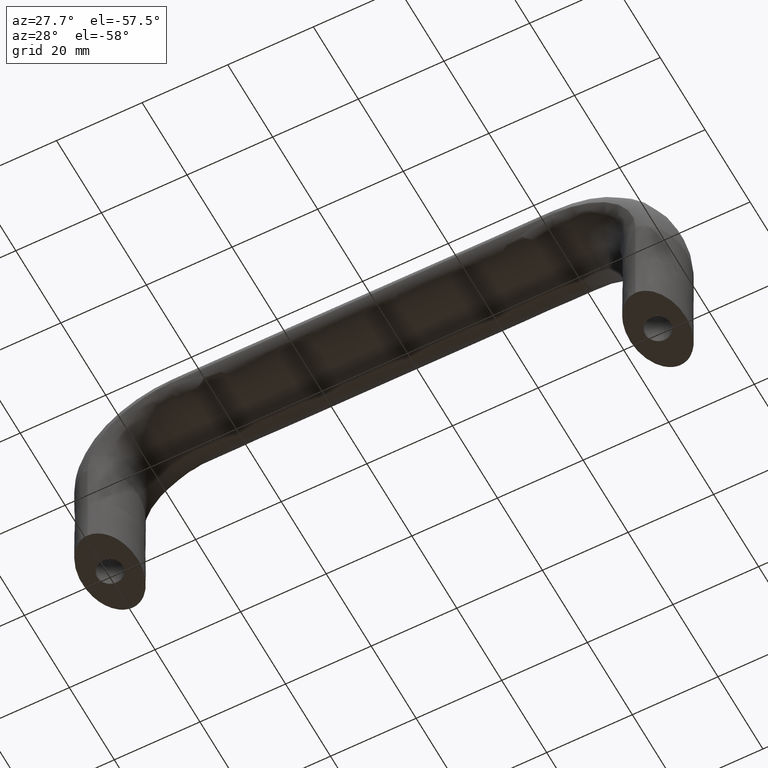
[diagram: clean part render]
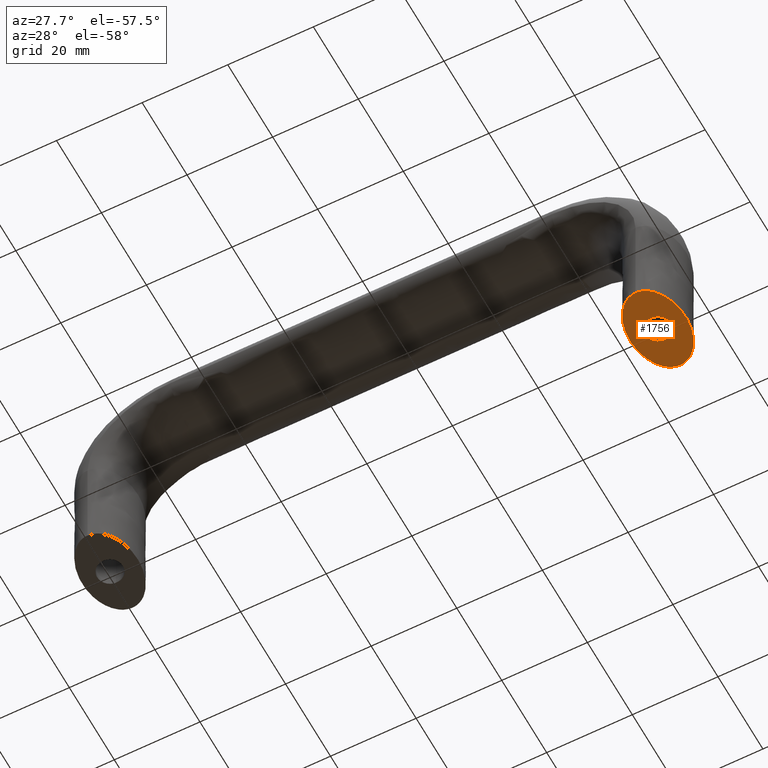
[diagram: same view with one face highlighted and labeled with its STEP entity id]
A machine part, auxiliary view. The second image highlights one B-rep face of the part: STEP entity #1756.
In plain terms, the highlighted face is a freeform B-spline surface patch.
Its self-contained STEP definition (entity closure, byte-faithful):
#271=CARTESIAN_POINT('',(128.354109704123200,-2.979028579072824,2.839428E-017));
#272=VERTEX_POINT('',#271);
#278=CARTESIAN_POINT('',(125.000007000000000,0.0,0.0));
#279=VERTEX_POINT('',#278);
#280=CARTESIAN_POINT('',(128.354109704123200,-2.979028579072824,2.839428E-017));
#281=CARTESIAN_POINT('',(128.177679359110270,-3.000000000000000,0.0));
#282=CARTESIAN_POINT('',(128.000007000000010,-3.0,0.0));
#283=CARTESIAN_POINT('',(125.000006999999980,-3.0,0.0));
#284=CARTESIAN_POINT('',(125.000007000000000,0.0,0.0));
#292=(BOUNDED_CURVE()B_SPLINE_CURVE(2,(#280,#281,#282,#283,#284),.UNSPECIFIED.,.F.,.U.)B_SPLINE_CURVE_WITH_KNOTS((3,2,3),(0.229562473498295,0.250000000000000,0.500000000000000),.UNSPECIFIED.)CURVE()GEOMETRIC_REPRESENTATION_ITEM()RATIONAL_B_SPLINE_CURVE((0.956026754153881,0.976055948313322,1.0,0.707106781186548,1.0))REPRESENTATION_ITEM(''));
#293=EDGE_CURVE('',#272,#279,#292,.T.);
#295=CARTESIAN_POINT('',(127.816861380719000,2.994404395224228,2.775558E-017));
#296=VERTEX_POINT('',#295);
#297=CARTESIAN_POINT('',(125.000007000000000,0.0,0.0));
#298=CARTESIAN_POINT('',(125.000007000000000,2.822118199439670,0.0));
#299=CARTESIAN_POINT('',(127.816861380718990,2.994404395224227,2.775558E-017));
#307=(BOUNDED_CURVE()B_SPLINE_CURVE(2,(#297,#298,#299),.UNSPECIFIED.,.F.,.U.)B_SPLINE_CURVE_WITH_KNOTS((3,3),(0.500000000000000,0.739332962164012),.UNSPECIFIED.)CURVE()GEOMETRIC_REPRESENTATION_ITEM()RATIONAL_B_SPLINE_CURVE((1.0,0.719603993374498,0.976072041506126))REPRESENTATION_ITEM(''));
#308=EDGE_CURVE('',#279,#296,#307,.T.);
#382=CARTESIAN_POINT('',(131.000007000000010,0.0,0.0));
#383=VERTEX_POINT('',#382);
#384=CARTESIAN_POINT('',(127.816861380719020,2.994404395224228,2.775558E-017));
#385=CARTESIAN_POINT('',(127.908348709425950,3.0,0.0));
#386=CARTESIAN_POINT('',(128.000007000000010,3.0,0.0));
#387=CARTESIAN_POINT('',(131.000007000000010,3.0,0.0));
#388=CARTESIAN_POINT('',(131.000007000000010,0.0,0.0));
#396=(BOUNDED_CURVE()B_SPLINE_CURVE(2,(#384,#385,#386,#387,#388),.UNSPECIFIED.,.F.,.U.)B_SPLINE_CURVE_WITH_KNOTS((3,2,3),(0.739332962164012,0.750000000000000,1.0),.UNSPECIFIED.)CURVE()GEOMETRIC_REPRESENTATION_ITEM()RATIONAL_B_SPLINE_CURVE((0.976072041506127,0.987502787812050,1.0,0.707106781186548,1.0))REPRESENTATION_ITEM(''));
#397=EDGE_CURVE('',#296,#383,#396,.T.);
#399=CARTESIAN_POINT('',(131.000007000000010,0.0,0.0));
#400=CARTESIAN_POINT('',(131.000007000000010,-2.664523577578653,0.0));
#401=CARTESIAN_POINT('',(128.354109704123180,-2.979028579072824,2.839428E-017));
#409=(BOUNDED_CURVE()B_SPLINE_CURVE(2,(#399,#400,#401),.UNSPECIFIED.,.F.,.U.)B_SPLINE_CURVE_WITH_KNOTS((3,3),(0.0,0.229562473498295),.UNSPECIFIED.)CURVE()GEOMETRIC_REPRESENTATION_ITEM()RATIONAL_B_SPLINE_CURVE((1.0,0.731050832873226,0.956026754153881))REPRESENTATION_ITEM(''));
#410=EDGE_CURVE('',#383,#272,#409,.T.);
#474=CARTESIAN_POINT('',(128.000006999999810,-10.0,2.244912E-030));
#475=VERTEX_POINT('',#474);
#483=CARTESIAN_POINT('',(130.767738322028010,9.043088328509544,-2.464482E-016));
#484=VERTEX_POINT('',#483);
#485=CARTESIAN_POINT('',(130.767738322028010,9.043088328509544,-2.464482E-016));
#486=CARTESIAN_POINT('',(131.788920821174910,8.305512378245888,-4.355888E-016));
#487=CARTESIAN_POINT('',(132.593839128236510,7.067798397807001,-5.929763E-016));
#488=CARTESIAN_POINT('',(133.507972283764300,5.662145952517433,-7.717187E-016));
#489=CARTESIAN_POINT('',(134.003266680679700,3.824125052806048,-8.821813E-016));
#490=CARTESIAN_POINT('',(134.498187716438590,1.987489683827639,-9.925607E-016));
#491=CARTESIAN_POINT('',(134.498549664107000,-0.002017246560270,-1.017792E-015));
#492=CARTESIAN_POINT('',(134.498911338933200,-1.990024453444192,-1.043004E-015));
#493=CARTESIAN_POINT('',(134.004285734043010,-3.828133019279761,-9.791618E-016));
#494=CARTESIAN_POINT('',(133.510032986189800,-5.664855988197224,-9.153682E-016));
#495=CARTESIAN_POINT('',(132.595722093326090,-7.071730822781738,-7.721729E-016));
#496=CARTESIAN_POINT('',(131.682100423296900,-8.477545131598838,-6.290855E-016));
#497=CARTESIAN_POINT('',(130.487299787594510,-9.239002294770296,-4.283370E-016));
#498=CARTESIAN_POINT('',(129.293477871442890,-9.999835711192290,-2.277528E-016));
#499=CARTESIAN_POINT('',(128.000006999999810,-10.0,2.244912E-030));
#500=B_SPLINE_CURVE_WITH_KNOTS('',2,(#485,#486,#487,#488,#489,#490,#491,#492,#493,#494,#495,#496,#497,#498,#499),.UNSPECIFIED.,.F.,.U.,(3,2,2,2,2,2,2,3),(0.140017178929429,0.250000000000000,0.375000000000000,0.500000000000000,0.625000000000000,0.750000000000000,0.875000000000000,1.0),.UNSPECIFIED.);
#501=EDGE_CURVE('',#484,#475,#500,.T.);
#572=CARTESIAN_POINT('',(128.000006999999810,10.0,8.618537E-030));
#573=VERTEX_POINT('',#572);
#574=CARTESIAN_POINT('',(128.000006999999810,10.0,8.618537E-030));
#575=CARTESIAN_POINT('',(129.291915429159390,9.998305116528963,-1.271980E-016));
#576=CARTESIAN_POINT('',(130.485151365502300,9.235614506326396,-2.238775E-016));
#577=CARTESIAN_POINT('',(130.628461118032790,9.144014011171633,-2.354889E-016));
#578=CARTESIAN_POINT('',(130.767738322028010,9.043088328509544,-2.464482E-016));
#579=B_SPLINE_CURVE_WITH_KNOTS('',2,(#574,#575,#576,#577,#578),.UNSPECIFIED.,.F.,.U.,(3,2,3),(0.0,0.125000000000000,0.140017178929429),.UNSPECIFIED.);
#580=EDGE_CURVE('',#573,#484,#579,.T.);
#582=CARTESIAN_POINT('',(128.000006999999810,-9.999999999999991,1.614772E-029));
#583=CARTESIAN_POINT('',(126.707017830758600,-9.999801078588824,2.300491E-016));
#584=CARTESIAN_POINT('',(125.512564689626700,-9.238795325112877,4.425666E-016));
#585=CARTESIAN_POINT('',(124.318466070474100,-8.478015443424365,6.550211E-016));
#586=CARTESIAN_POINT('',(123.403812922287200,-7.071067811865467,8.177565E-016));
#587=CARTESIAN_POINT('',(122.489849254913100,-5.665180760919563,9.803692E-016));
#588=CARTESIAN_POINT('',(121.994790038676400,-3.826834323650910,1.068450E-015));
#589=CARTESIAN_POINT('',(121.500104006350000,-1.989873662647719,1.156465E-015));
#590=CARTESIAN_POINT('',(121.500006999999800,2.910405E-015,1.156482E-015));
#591=CARTESIAN_POINT('',(121.499910066774600,1.988373662543318,1.156500E-015));
#592=CARTESIAN_POINT('',(121.994790038676400,3.826834323650904,1.068450E-015));
#593=CARTESIAN_POINT('',(122.489296961766400,5.663909122318558,9.804675E-016));
#594=CARTESIAN_POINT('',(123.403812922287200,7.071067811865470,8.177565E-016));
#595=CARTESIAN_POINT('',(124.317639505371200,8.477165761641208,6.551681E-016));
#596=CARTESIAN_POINT('',(125.512564689626700,9.238795325112868,4.425666E-016));
#597=CARTESIAN_POINT('',(126.706511052322600,9.999801000623179,2.301393E-016));
#598=CARTESIAN_POINT('',(128.000006999999810,9.999999999999996,8.618537E-030));
#599=B_SPLINE_CURVE_WITH_KNOTS('',2,(#582,#583,#584,#585,#586,#587,#588,#589,#590,#591,#592,#593,#594,#595,#596,#597,#598),.UNSPECIFIED.,.F.,.U.,(3,2,2,2,2,2,2,2,3),(0.0,0.125000000000000,0.250000000000000,0.375000000000000,0.500000000000000,0.625000000000000,0.750000000000000,0.875000000000000,1.0),.UNSPECIFIED.);
#600=EDGE_CURVE('',#475,#573,#599,.T.);
#1740=CARTESIAN_POINT('',(120.893166087443500,11.026340128332791,8.618537E-030));
#1741=CARTESIAN_POINT('',(120.808540567471990,-10.971334774418519,8.618537E-030));
#1742=CARTESIAN_POINT('',(135.189673764030600,10.971341161339430,8.618537E-030));
#1743=CARTESIAN_POINT('',(135.105048244059110,-11.026333741411880,8.618537E-030));
#1744=B_SPLINE_SURFACE_WITH_KNOTS('',1,1,((#1740,#1742),(#1741,#1743)),.UNSPECIFIED.,.F.,.F.,.U.,(2,2),(2,2),(0.0,21.997837680230418),(0.0,14.296613467289550),.UNSPECIFIED.);
#1745=ORIENTED_EDGE('',*,*,#580,.T.);
#1746=ORIENTED_EDGE('',*,*,#501,.T.);
#1747=ORIENTED_EDGE('',*,*,#600,.T.);
#1748=EDGE_LOOP('',(#1745,#1746,#1747));
#1749=FACE_OUTER_BOUND('',#1748,.T.);
#1750=ORIENTED_EDGE('',*,*,#308,.F.);
#1751=ORIENTED_EDGE('',*,*,#293,.F.);
#1752=ORIENTED_EDGE('',*,*,#410,.F.);
#1753=ORIENTED_EDGE('',*,*,#397,.F.);
#1754=EDGE_LOOP('',(#1750,#1751,#1752,#1753));
#1755=FACE_BOUND('',#1754,.T.);
#1756=ADVANCED_FACE('',(#1749,#1755),#1744,.F.);